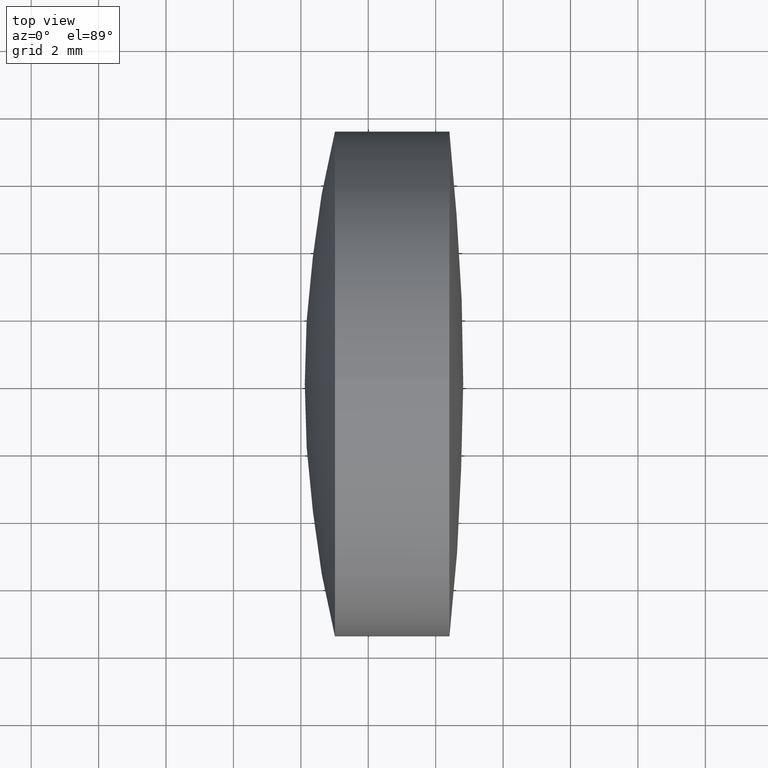
[diagram: clean part render]
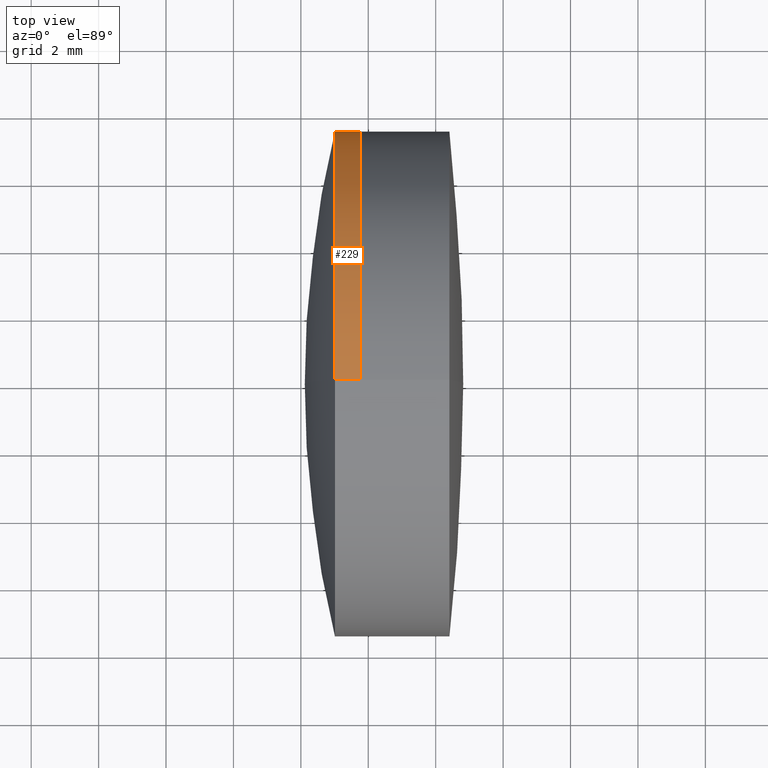
[diagram: same view with one face highlighted and labeled with its STEP entity id]
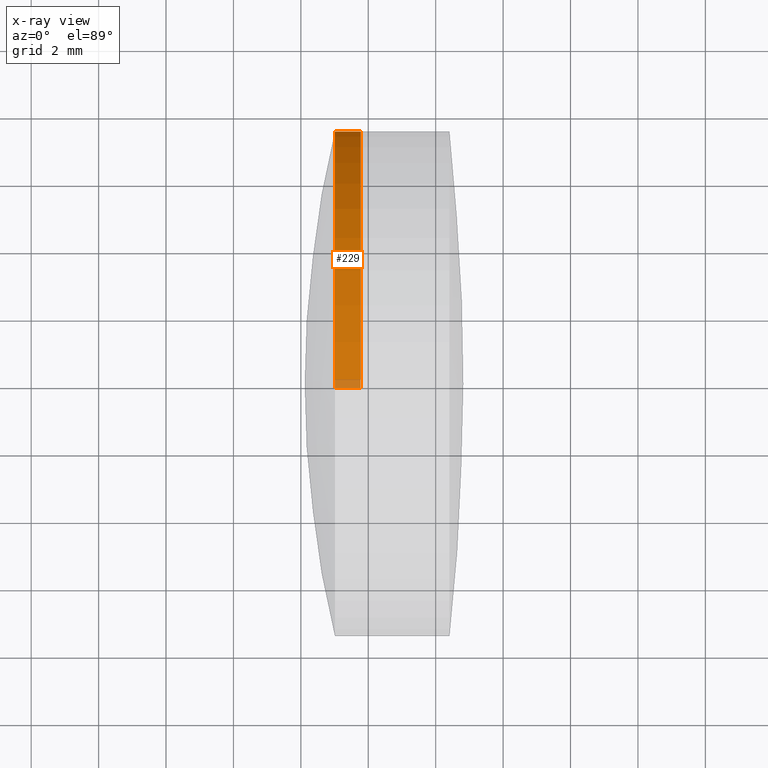
[diagram: x-ray of the same camera — body ghosted, the highlighted face saturated]
A machine part, top view. The second image highlights one B-rep face of the part: STEP entity #229.
The next image is the same camera in x-ray: the body ghosted, the highlighted face saturated — about 3% of this face is hidden behind the body in this view.
In plain terms, the highlighted cylindrical surface (partial cylindrical patch) has radius 7.5 mm, axis along (-1, -0, -0).
Its self-contained STEP definition (entity closure, byte-faithful):
#5 = ORIENTED_EDGE ( 'NONE', *, *, #72, .T. ) ;
#6 = CARTESIAN_POINT ( 'NONE',  ( 13.01076923225601200, 0.0000000000000000000, -7.500000000000007100 ) ) ;
#7 = AXIS2_PLACEMENT_3D ( 'NONE', #273, #58, #145 ) ;
#11 = LINE ( 'NONE', #342, #49 ) ;
#16 = DIRECTION ( 'NONE',  ( -1.000000000000000000, -0.0000000000000000000, -0.0000000000000000000 ) ) ;
#18 = EDGE_CURVE ( 'NONE', #159, #134, #24, .T. ) ;
#21 = DIRECTION ( 'NONE',  ( -1.000000000000000000, -0.0000000000000000000, -0.0000000000000000000 ) ) ;
#24 = CIRCLE ( 'NONE', #295, 7.500000000000000000 ) ;
#47 = DIRECTION ( 'NONE',  ( -1.000000000000000000, -0.0000000000000000000, -0.0000000000000000000 ) ) ;
#49 = VECTOR ( 'NONE', #21, 1000.000000000000000 ) ;
#54 = VERTEX_POINT ( 'NONE', #339 ) ;
#55 = EDGE_CURVE ( 'NONE', #136, #134, #11, .T. ) ;
#58 = DIRECTION ( 'NONE',  ( -1.000000000000000000, -0.0000000000000000000, -0.0000000000000000000 ) ) ;
#61 = DIRECTION ( 'NONE',  ( 0.0000000000000000000, 0.0000000000000000000, 1.000000000000000000 ) ) ;
#72 = EDGE_CURVE ( 'NONE', #54, #136, #224, .T. ) ;
#94 = CARTESIAN_POINT ( 'NONE',  ( 13.01076923225601300, 0.0000000000000000000, 0.0000000000000000000 ) ) ;
#119 = CARTESIAN_POINT ( 'NONE',  ( 13.76976148905017500, 9.184850993605147900E-016, -7.500000000000000000 ) ) ;
#129 = EDGE_CURVE ( 'NONE', #54, #159, #266, .T. ) ;
#134 = VERTEX_POINT ( 'NONE', #6 ) ;
#136 = VERTEX_POINT ( 'NONE', #119 ) ;
#142 = CARTESIAN_POINT ( 'NONE',  ( 13.01076923225601200, -9.184850993605155800E-016, 7.500000000000007100 ) ) ;
#145 = DIRECTION ( 'NONE',  ( 0.0000000000000000000, 0.0000000000000000000, 1.000000000000000000 ) ) ;
#159 = VERTEX_POINT ( 'NONE', #142 ) ;
#160 = ORIENTED_EDGE ( 'NONE', *, *, #55, .T. ) ;
#179 = ORIENTED_EDGE ( 'NONE', *, *, #18, .F. ) ;
#224 = CIRCLE ( 'NONE', #290, 7.500000000000000000 ) ;
#227 = DIRECTION ( 'NONE',  ( -1.000000000000000000, -0.0000000000000000000, -0.0000000000000000000 ) ) ;
#229 = ADVANCED_FACE ( 'NONE', ( #316 ), #337, .T. ) ;
#233 = DIRECTION ( 'NONE',  ( 0.0000000000000000000, 0.0000000000000000000, 1.000000000000000000 ) ) ;
#253 = VECTOR ( 'NONE', #227, 1000.000000000000000 ) ;
#259 = ORIENTED_EDGE ( 'NONE', *, *, #129, .F. ) ;
#266 = LINE ( 'NONE', #275, #253 ) ;
#273 = CARTESIAN_POINT ( 'NONE',  ( -9.702612178336682500, 0.0000000000000000000, 0.0000000000000000000 ) ) ;
#275 = CARTESIAN_POINT ( 'NONE',  ( -9.702612178336682500, 0.0000000000000000000, 7.500000000000000000 ) ) ;
#290 = AXIS2_PLACEMENT_3D ( 'NONE', #335, #47, #61 ) ;
#295 = AXIS2_PLACEMENT_3D ( 'NONE', #94, #16, #233 ) ;
#316 = FACE_OUTER_BOUND ( 'NONE', #321, .T. ) ;
#321 = EDGE_LOOP ( 'NONE', ( #5, #160, #179, #259 ) ) ;
#335 = CARTESIAN_POINT ( 'NONE',  ( 13.76976148905017500, 0.0000000000000000000, 0.0000000000000000000 ) ) ;
#337 = CYLINDRICAL_SURFACE ( 'NONE', #7, 7.500000000000000000 ) ;
#339 = CARTESIAN_POINT ( 'NONE',  ( 13.76976148905017500, 0.0000000000000000000, 7.500000000000000000 ) ) ;
#342 = CARTESIAN_POINT ( 'NONE',  ( -9.702612178336682500, 9.184850993605147900E-016, -7.500000000000000000 ) ) ;